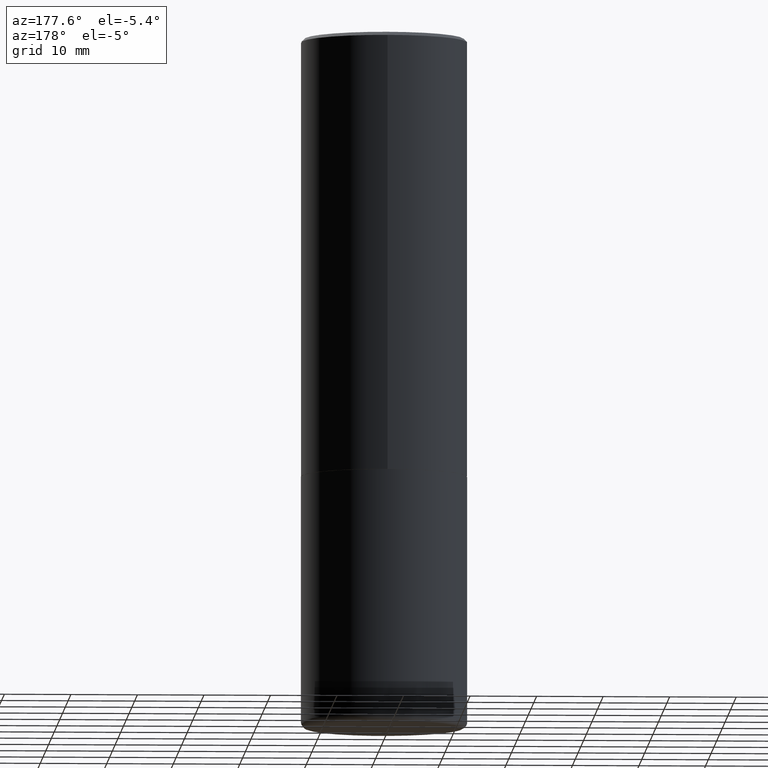
[diagram: clean part render]
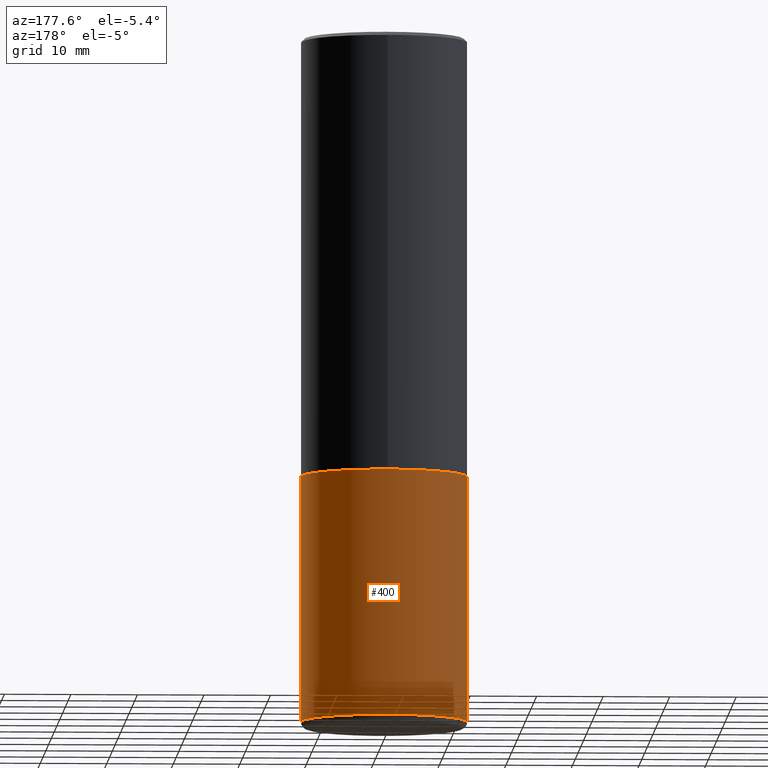
[diagram: same view with one face highlighted and labeled with its STEP entity id]
A machine part, auxiliary view. The second image highlights one B-rep face of the part: STEP entity #400.
In plain terms, the highlighted cylindrical surface (partial cylindrical patch) has radius 12.5006 mm, axis along (-0, 0, 1).
Its self-contained STEP definition (entity closure, byte-faithful):
#5 = FACE_OUTER_BOUND ( 'NONE', #256, .T. ) ;
#22 = ORIENTED_EDGE ( 'NONE', *, *, #304, .T. ) ;
#39 = CARTESIAN_POINT ( 'NONE',  ( 0.4921499999999999764, -3.436665081823295777E-15, 2.399810400207969603E-29 ) ) ;
#61 = VERTEX_POINT ( 'NONE', #103 ) ;
#84 = VECTOR ( 'NONE', #402, 39.37007874015748143 ) ;
#85 = CARTESIAN_POINT ( 'NONE',  ( 6.354306145991459756E-29, -9.072265110850031044E-15, -2.598400000000000265 ) ) ;
#88 = DIRECTION ( 'NONE',  ( 1.000000000000000000, -6.982962677686265922E-15, 0.000000000000000000 ) ) ;
#97 = VERTEX_POINT ( 'NONE', #294 ) ;
#102 = CARTESIAN_POINT ( 'NONE',  ( 0.000000000000000000, 0.000000000000000000, 0.000000000000000000 ) ) ;
#103 = CARTESIAN_POINT ( 'NONE',  ( 0.4921499999999999764, -1.250893019267332682E-14, -2.598400000000000265 ) ) ;
#112 = CARTESIAN_POINT ( 'NONE',  ( -0.4921499999999999764, -8.118349469953103765E-15, -2.598400000000000265 ) ) ;
#141 = DIRECTION ( 'NONE',  ( -2.445468806185136597E-29, 3.491481338843145583E-15, 1.000000000000000000 ) ) ;
#165 = DIRECTION ( 'NONE',  ( -2.445468806185136877E-29, 3.491481338843145188E-15, 1.000000000000000000 ) ) ;
#188 = AXIS2_PLACEMENT_3D ( 'NONE', #102, #328, #237 ) ;
#196 = VECTOR ( 'NONE', #165, 39.37007874015748143 ) ;
#210 = CARTESIAN_POINT ( 'NONE',  ( 9.916620555961347550E-29, -1.415830597714284070E-14, -4.055100000000000371 ) ) ;
#219 = VERTEX_POINT ( 'NONE', #112 ) ;
#237 = DIRECTION ( 'NONE',  ( 1.000000000000000000, -6.982962677686265922E-15, 4.876176775795935793E-29 ) ) ;
#243 = EDGE_CURVE ( 'NONE', #97, #302, #271, .T. ) ;
#244 = LINE ( 'NONE', #39, #196 ) ;
#248 = DIRECTION ( 'NONE',  ( 1.000000000000000000, -6.982962677686266711E-15, 0.000000000000000000 ) ) ;
#256 = EDGE_LOOP ( 'NONE', ( #277, #22, #356, #316 ) ) ;
#269 = CYLINDRICAL_SURFACE ( 'NONE', #188, 0.4921499999999999764 ) ;
#271 = CIRCLE ( 'NONE', #346, 0.4921499999999999209 ) ;
#276 = CARTESIAN_POINT ( 'NONE',  ( -0.4921499999999999764, 3.496936074043332897E-15, -2.420853904668951509E-29 ) ) ;
#277 = ORIENTED_EDGE ( 'NONE', *, *, #243, .T. ) ;
#281 = EDGE_CURVE ( 'NONE', #61, #219, #385, .T. ) ;
#294 = CARTESIAN_POINT ( 'NONE',  ( 0.4921500000000000874, -1.759497105896613648E-14, -4.055100000000000371 ) ) ;
#302 = VERTEX_POINT ( 'NONE', #382 ) ;
#304 = EDGE_CURVE ( 'NONE', #302, #219, #351, .T. ) ;
#316 = ORIENTED_EDGE ( 'NONE', *, *, #381, .F. ) ;
#322 = AXIS2_PLACEMENT_3D ( 'NONE', #85, #374, #88 ) ;
#328 = DIRECTION ( 'NONE',  ( -2.445468806185136597E-29, 3.491481338843145583E-15, 1.000000000000000000 ) ) ;
#346 = AXIS2_PLACEMENT_3D ( 'NONE', #210, #141, #248 ) ;
#351 = LINE ( 'NONE', #276, #84 ) ;
#356 = ORIENTED_EDGE ( 'NONE', *, *, #281, .F. ) ;
#374 = DIRECTION ( 'NONE',  ( -2.445468806185136597E-29, 3.491481338843145583E-15, 1.000000000000000000 ) ) ;
#381 = EDGE_CURVE ( 'NONE', #97, #61, #244, .T. ) ;
#382 = CARTESIAN_POINT ( 'NONE',  ( -0.4921500000000000874, -1.066136990309950544E-14, -4.055100000000000371 ) ) ;
#385 = CIRCLE ( 'NONE', #322, 0.4921499999999999764 ) ;
#400 = ADVANCED_FACE ( 'NONE', ( #5 ), #269, .T. ) ;
#402 = DIRECTION ( 'NONE',  ( -2.445468806185136877E-29, 3.491481338843145188E-15, 1.000000000000000000 ) ) ;